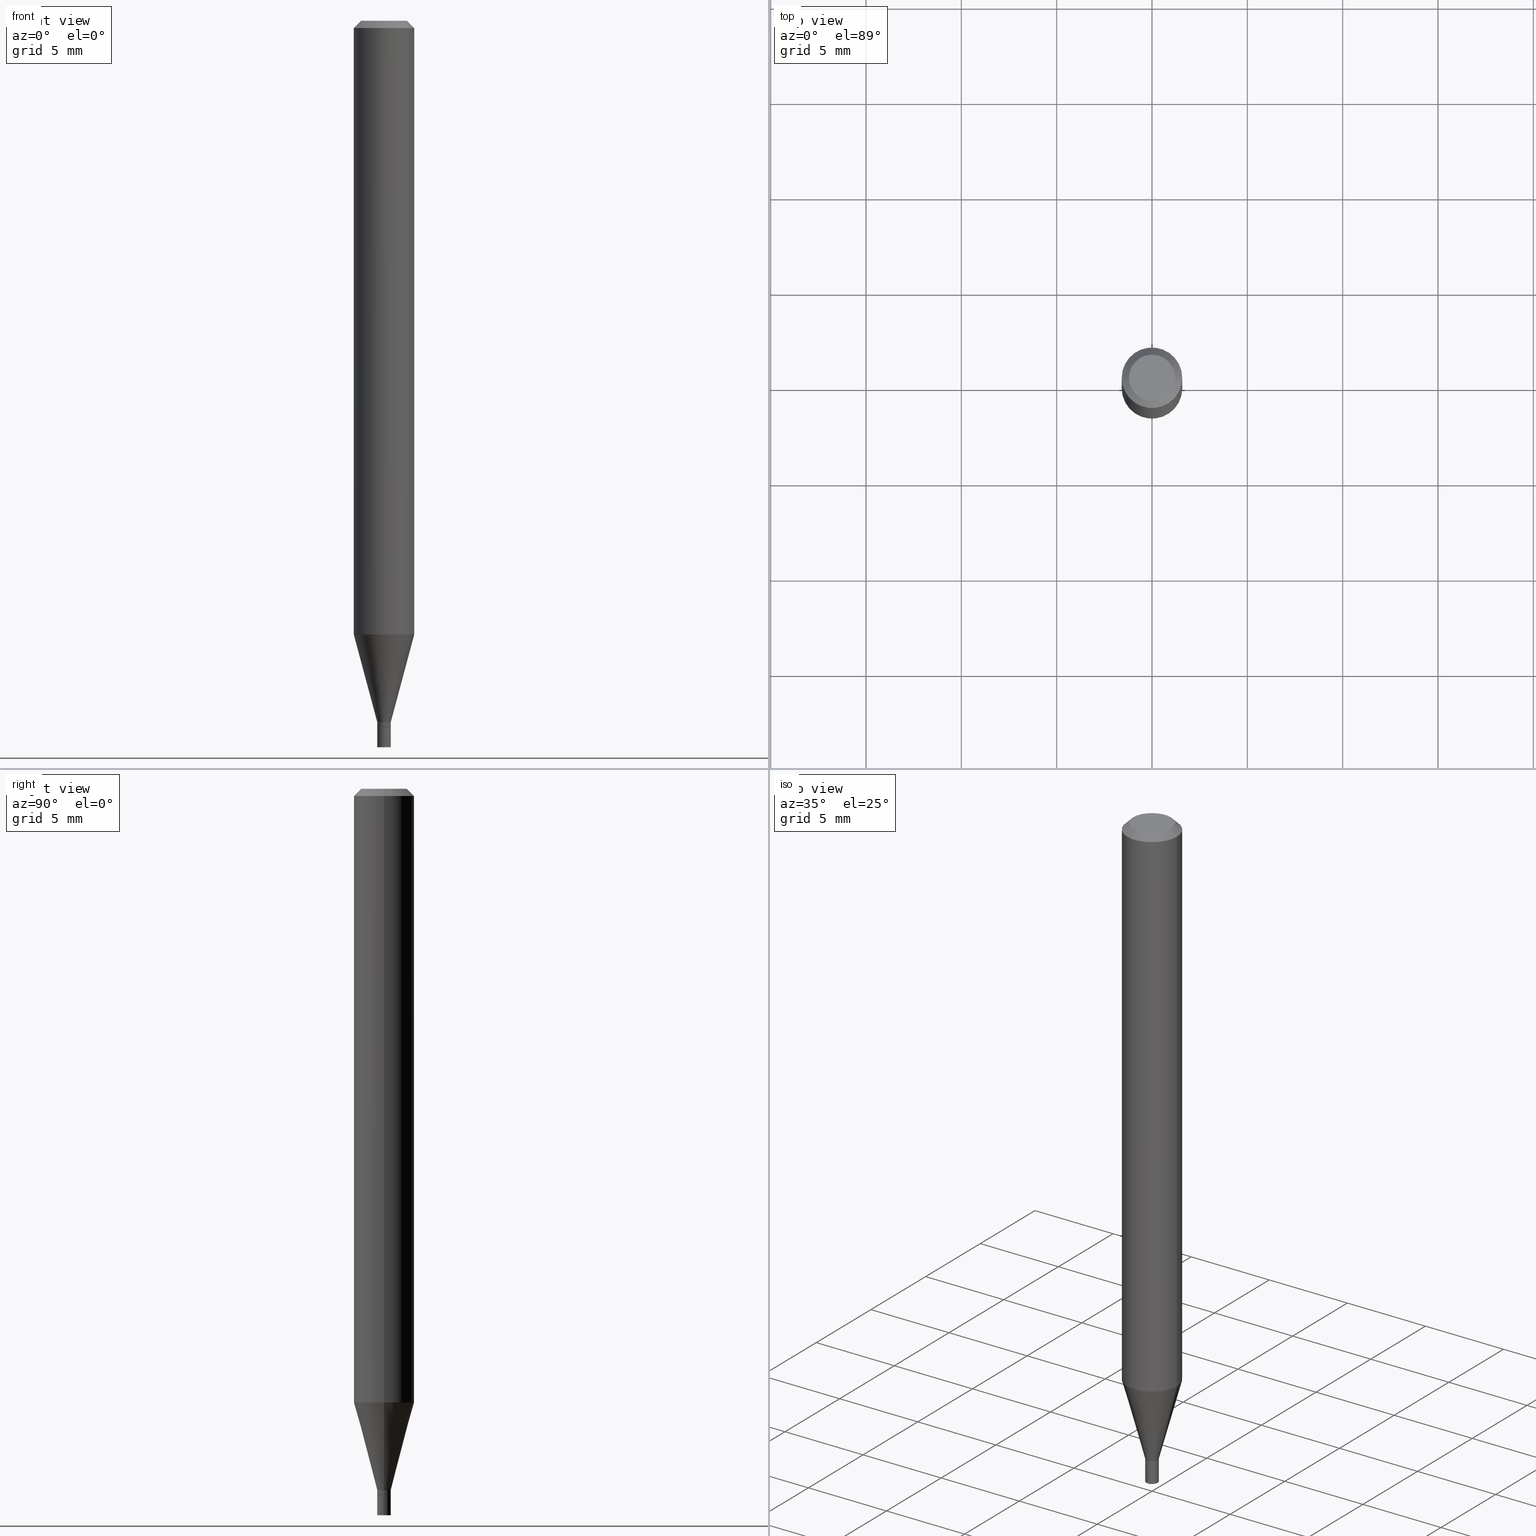
[diagram: canonical four-view strip — front | top / right | iso, engineering-drawing reading convention]
A machine part, canonical four-view strip (front | top / right | iso — engineering-drawing reading convention). The complete STEP part file that produces these views, byte-faithful:
ISO-10303-21;
HEADER;
FILE_DESCRIPTION (( 'STEP AP203' ),
    '1' );
FILE_NAME ('02224.STEP',
    '2024-03-18T19:55:11',
    ( '' ),
    ( '' ),
    'SwSTEP 2.0',
    'SolidWorks 2023',
    '' );
FILE_SCHEMA (( 'CONFIG_CONTROL_DESIGN' ));
ENDSEC;

DATA;
#1 = AXIS2_PLACEMENT_3D ( 'NONE', #270, #83, #49 ) ;
#2 = COORDINATED_UNIVERSAL_TIME_OFFSET ( 5, 0, .BEHIND. ) ;
#3 = ADVANCED_FACE ( 'NONE', ( #456 ), #176, .F. ) ;
#4 = CARTESIAN_POINT ( 'NONE',  ( 0.01350000000000000158, -5.184849788182071492E-15, -1.458000000000000185 ) ) ;
#5 = DATE_AND_TIME ( #224, #283 ) ;
#6 = CARTESIAN_POINT ( 'NONE',  ( 3.565493519417929750E-29, -5.090579792033306355E-15, -1.458000000000000185 ) ) ;
#7 = CARTESIAN_POINT ( 'NONE',  ( -0.01400000000000000203, 9.947598300641404042E-17, -6.886509126356868606E-31 ) ) ;
#8 = AXIS2_PLACEMENT_3D ( 'NONE', #231, #150, #295 ) ;
#9 = EDGE_LOOP ( 'NONE', ( #407, #291, #288, #415 ) ) ;
#10 = DIRECTION ( 'NONE',  ( 1.000000000000000000, -6.982962677686266711E-15, 4.876176775795935793E-29 ) ) ;
#11 = EDGE_CURVE ( 'NONE', #307, #87, #177, .T. ) ;
#12 = ADVANCED_BREP_SHAPE_REPRESENTATION ( '02224', ( #284, #125, #221 ), #164 ) ;
#13 = ORIENTED_EDGE ( 'NONE', *, *, #349, .T. ) ;
#14 = EDGE_CURVE ( 'NONE', #235, #348, #94, .T. ) ;
#15 = EDGE_LOOP ( 'NONE', ( #64, #129, #402, #121 ) ) ;
#16 = VERTEX_POINT ( 'NONE', #208 ) ;
#17 = ORGANIZATION ( 'UNSPECIFIED', 'UNSPECIFIED', '' ) ;
#18 = ADVANCED_FACE ( 'NONE', ( #218 ), #310, .F. ) ;
#19 = CARTESIAN_POINT ( 'NONE',  ( -0.06250000000000000000, 3.840629472727444916E-16, -0.01499999999999999944 ) ) ;
#20 = CARTESIAN_POINT ( 'NONE',  ( 0.06249999999999999306, -4.860126437113567612E-15, -1.266995535832909692 ) ) ;
#21 = FACE_OUTER_BOUND ( 'NONE', #196, .T. ) ;
#22 = DIRECTION ( 'NONE',  ( 1.000000000000000000, -6.982962677686262766E-15, 0.000000000000000000 ) ) ;
#23 = EDGE_CURVE ( 'NONE', #336, #422, #333, .T. ) ;
#24 = CYLINDRICAL_SURFACE ( 'NONE', #277, 0.01399999999999992223 ) ;
#25 = ORIENTED_EDGE ( 'NONE', *, *, #327, .T. ) ;
#26 = AXIS2_PLACEMENT_3D ( 'NONE', #346, #280, #22 ) ;
#27 = DIRECTION ( 'NONE',  ( 2.445468806185136597E-29, -3.491481338843145583E-15, -1.000000000000000000 ) ) ;
#28 = DIRECTION ( 'NONE',  ( 2.438088387897960049E-29, -3.491481338843145188E-15, -1.000000000000000000 ) ) ;
#29 = CONICAL_SURFACE ( 'NONE', #206, 0.01399999999999992049, 0.2617993877991498519 ) ;
#30 = ADVANCED_FACE ( 'NONE', ( #167 ), #448, .T. ) ;
#31 = DIRECTION ( 'NONE',  ( -0.7071067811865642261, 7.493145998870414114E-15, 0.7071067811865309194 ) ) ;
#32 = EDGE_LOOP ( 'NONE', ( #173, #61, #444, #265 ) ) ;
#33 = PLANE ( 'NONE',  #95 ) ;
#34 = PERSON_AND_ORGANIZATION_ROLE ( 'design_supplier' ) ;
#35 = APPROVAL_STATUS ( 'not_yet_approved' ) ;
#36 = EDGE_CURVE ( 'NONE', #87, #307, #390, .T. ) ;
#37 = AXIS2_PLACEMENT_3D ( 'NONE', #401, #364, #217 ) ;
#38 = DIRECTION ( 'NONE',  ( -2.445468806185136597E-29, 3.491481338843145583E-15, 1.000000000000000000 ) ) ;
#39 = CALENDAR_DATE ( 2024, 18, 3 ) ;
#40 = CARTESIAN_POINT ( 'NONE',  ( 0.01399999999999992049, -5.153426456132482850E-15, -1.448000000000000176 ) ) ;
#41 = LINE ( 'NONE', #7, #276 ) ;
#42 = PERSON_AND_ORGANIZATION ( #292, #17 ) ;
#43 = ORIENTED_EDGE ( 'NONE', *, *, #199, .F. ) ;
#44 = CC_DESIGN_PERSON_AND_ORGANIZATION_ASSIGNMENT ( #219, #466, ( #457 ) ) ;
#45 = LENGTH_MEASURE_WITH_UNIT ( LENGTH_MEASURE( 0.02539999999999999897 ), #300 );
#46 = EDGE_LOOP ( 'NONE', ( #79, #105, #269, #376 ) ) ;
#47 = VERTEX_POINT ( 'NONE', #323 ) ;
#48 = ORIENTED_EDGE ( 'NONE', *, *, #85, .F. ) ;
#49 = DIRECTION ( 'NONE',  ( 1.000000000000000000, -6.982962677686267499E-15, 4.852736867747366768E-29 ) ) ;
#50 = EDGE_CURVE ( 'NONE', #371, #422, #97, .T. ) ;
#51 = ORIENTED_EDGE ( 'NONE', *, *, #91, .T. ) ;
#52 = AXIS2_PLACEMENT_3D ( 'NONE', #420, #102, #418 ) ;
#53 = CC_DESIGN_SECURITY_CLASSIFICATION ( #457, ( #74 ) ) ;
#54 = FACE_OUTER_BOUND ( 'NONE', #114, .T. ) ;
#55 = AXIS2_PLACEMENT_3D ( 'NONE', #143, #357, #316 ) ;
#56 = LINE ( 'NONE', #212, #446 ) ;
#57 = DIRECTION ( 'NONE',  ( -2.445468806185136597E-29, 3.491481338843145583E-15, 1.000000000000000000 ) ) ;
#58 = CARTESIAN_POINT ( 'NONE',  ( -0.01350000000000000158, -4.994656522705693139E-15, -1.458000000000000185 ) ) ;
#59 = ORIENTED_EDGE ( 'NONE', *, *, #11, .F. ) ;
#60 = DIRECTION ( 'NONE',  ( -2.445468806185136877E-29, 3.491481338843145188E-15, 1.000000000000000000 ) ) ;
#61 = ORIENTED_EDGE ( 'NONE', *, *, #36, .T. ) ;
#62 = CONICAL_SURFACE ( 'NONE', #195, 0.06250000000000000000, 0.7853981633974579379 ) ;
#63 = DIRECTION ( 'NONE',  ( 2.438088387897960049E-29, -3.491481338843145188E-15, -1.000000000000000000 ) ) ;
#64 = ORIENTED_EDGE ( 'NONE', *, *, #441, .F. ) ;
#65 = VECTOR ( 'NONE', #215, 39.37007874015748143 ) ;
#66 = CARTESIAN_POINT ( 'NONE',  ( 0.01400000000000000203, -5.188341269520914499E-15, -1.458000000000000185 ) ) ;
#67 = DIRECTION ( 'NONE',  ( 1.000000000000000000, -6.982962677686301420E-15, 0.000000000000000000 ) ) ;
#68 = SECURITY_CLASSIFICATION_LEVEL ( 'unclassified' ) ;
#69 = ADVANCED_FACE ( 'NONE', ( #387 ), #180, .T. ) ;
#70 =( NAMED_UNIT ( * ) PLANE_ANGLE_UNIT ( ) SI_UNIT ( $, .RADIAN. ) );
#71 = CALENDAR_DATE ( 2024, 18, 3 ) ;
#72 = DIRECTION ( 'NONE',  ( 1.000000000000000000, -6.982962677686262766E-15, 0.000000000000000000 ) ) ;
#73 = APPROVAL_STATUS ( 'not_yet_approved' ) ;
#74 = PRODUCT_DEFINITION_FORMATION_WITH_SPECIFIED_SOURCE ( 'ANY', '', #411, .NOT_KNOWN. ) ;
#75 = LINE ( 'NONE', #40, #424 ) ;
#76 = CALENDAR_DATE ( 2024, 18, 3 ) ;
#77 = ORIENTED_EDGE ( 'NONE', *, *, #199, .T. ) ;
#78 = CARTESIAN_POINT ( 'NONE',  ( 0.01350000000000000158, -5.184849788182071492E-15, -1.458000000000000185 ) ) ;
#79 = ORIENTED_EDGE ( 'NONE', *, *, #50, .F. ) ;
#80 = VERTEX_POINT ( 'NONE', #118 ) ;
#81 = AXIS2_PLACEMENT_3D ( 'NONE', #246, #383, #134 ) ;
#82 = DATE_AND_TIME ( #309, #416 ) ;
#83 = DIRECTION ( 'NONE',  ( -2.445468806185136597E-29, 3.491481338843145583E-15, 1.000000000000000000 ) ) ;
#84 = ORIENTED_EDGE ( 'NONE', *, *, #194, .T. ) ;
#85 = EDGE_CURVE ( 'NONE', #442, #348, #428, .T. ) ;
#86 = DIRECTION ( 'NONE',  ( -2.445468806185136597E-29, 3.491481338843145583E-15, 1.000000000000000000 ) ) ;
#87 = VERTEX_POINT ( 'NONE', #437 ) ;
#88 = CARTESIAN_POINT ( 'NONE',  ( 0.000000000000000000, 0.000000000000000000, 0.000000000000000000 ) ) ;
#89 = AXIS2_PLACEMENT_3D ( 'NONE', #256, #28, #459 ) ;
#90 = LOCAL_TIME ( 15, 55, 11.00000000000000000, #2 ) ;
#91 = EDGE_CURVE ( 'NONE', #198, #442, #163, .T. ) ;
#92 = DIRECTION ( 'NONE',  ( -2.445468806185136597E-29, 3.491481338843145583E-15, 1.000000000000000000 ) ) ;
#93 = ORIENTED_EDGE ( 'NONE', *, *, #205, .F. ) ;
#94 = CIRCLE ( 'NONE', #361, 0.01399999999999992396 ) ;
#95 = AXIS2_PLACEMENT_3D ( 'NONE', #112, #294, #184 ) ;
#96 = CARTESIAN_POINT ( 'NONE',  ( 3.564270785014837509E-29, -5.088834051363884851E-15, -1.457500000000000240 ) ) ;
#97 = LINE ( 'NONE', #247, #148 ) ;
#98 = CARTESIAN_POINT ( 'NONE',  ( -0.01399999999999992049, -4.467895527773287748E-15, -1.448000000000000176 ) ) ;
#99 = CARTESIAN_POINT ( 'NONE',  ( 0.000000000000000000, 0.000000000000000000, 0.000000000000000000 ) ) ;
#100 = ADVANCED_FACE ( 'NONE', ( #426 ), #62, .T. ) ;
#101 = DIRECTION ( 'NONE',  ( 1.000000000000000000, -6.982962677686266711E-15, 0.000000000000000000 ) ) ;
#102 = DIRECTION ( 'NONE',  ( -2.445468806185136597E-29, 3.491481338843145583E-15, 1.000000000000000000 ) ) ;
#103 = APPROVAL_ROLE ( '' ) ;
#104 = DIRECTION ( 'NONE',  ( 1.000000000000000000, -6.982962677686233578E-15, 0.000000000000000000 ) ) ;
#105 = ORIENTED_EDGE ( 'NONE', *, *, #341, .F. ) ;
#106 = VECTOR ( 'NONE', #31, 39.37007874015748143 ) ;
#107 = CC_DESIGN_DATE_AND_TIME_ASSIGNMENT ( #394, #189, ( #337 ) ) ;
#108 = FACE_OUTER_BOUND ( 'NONE', #251, .T. ) ;
#109 = CARTESIAN_POINT ( 'NONE',  ( -0.04749999999999999362, 3.578768372314205575E-16, -2.863788329398987133E-16 ) ) ;
#110 = PERSON_AND_ORGANIZATION_ROLE ( 'design_owner' ) ;
#111 = UNCERTAINTY_MEASURE_WITH_UNIT (LENGTH_MEASURE( 1.000000000000000082E-05 ), #186, 'distance_accuracy_value', 'NONE');
#112 = CARTESIAN_POINT ( 'NONE',  ( 3.576687321579069994E-29, -5.368277968210015545E-15, -1.500000000000000222 ) ) ;
#113 = AXIS2_PLACEMENT_3D ( 'NONE', #140, #417, #302 ) ;
#114 = EDGE_LOOP ( 'NONE', ( #77, #305, #332, #462 ) ) ;
#115 = EDGE_CURVE ( 'NONE', #16, #47, #41, .T. ) ;
#116 = ORIENTED_EDGE ( 'NONE', *, *, #174, .F. ) ;
#117 = DIRECTION ( 'NONE',  ( -2.445468806185136597E-29, 3.491481338843145583E-15, 1.000000000000000000 ) ) ;
#118 = CARTESIAN_POINT ( 'NONE',  ( 0.01399999999999992049, -5.153426456132482850E-15, -1.448000000000000176 ) ) ;
#119 = VERTEX_POINT ( 'NONE', #272 ) ;
#120 = CLOSED_SHELL ( 'NONE', ( #123, #209, #100, #372, #429, #225, #30, #161, #252, #18, #312, #243 ) ) ;
#121 = ORIENTED_EDGE ( 'NONE', *, *, #289, .F. ) ;
#122 = CONICAL_SURFACE ( 'NONE', #434, 0.01350000000000000158, 0.7853981633974718157 ) ;
#123 = ADVANCED_FACE ( 'NONE', ( #54 ), #406, .T. ) ;
#124 = DIRECTION ( 'NONE',  ( -2.445468806185136877E-29, 3.491481338843145188E-15, 1.000000000000000000 ) ) ;
#125 = MANIFOLD_SOLID_BREP ( 'Body-Move/Copy2[2]', #120 ) ;
#126 = ORIENTED_EDGE ( 'NONE', *, *, #275, .T. ) ;
#127 = SHAPE_DEFINITION_REPRESENTATION ( #168, #12 ) ;
#128 = DIRECTION ( 'NONE',  ( -2.445468806185136597E-29, 3.491481338843145583E-15, 1.000000000000000000 ) ) ;
#129 = ORIENTED_EDGE ( 'NONE', *, *, #14, .T. ) ;
#130 = DIRECTION ( 'NONE',  ( -0.7071067811865542341, 2.468850131082328058E-15, -0.7071067811865405783 ) ) ;
#131 = EDGE_CURVE ( 'NONE', #303, #47, #253, .T. ) ;
#132 = CLOSED_SHELL ( 'NONE', ( #69, #412, #375, #3 ) ) ;
#133 = AXIS2_PLACEMENT_3D ( 'NONE', #96, #343, #279 ) ;
#134 = DIRECTION ( 'NONE',  ( 1.000000000000000000, -6.982962677686296687E-15, 0.000000000000000000 ) ) ;
#135 = CARTESIAN_POINT ( 'NONE',  ( 3.565493519417929750E-29, -5.090579792033306355E-15, -1.458000000000000185 ) ) ;
#136 = DIRECTION ( 'NONE',  ( 1.000000000000000000, -6.982962677686266711E-15, 4.876176775795935793E-29 ) ) ;
#137 = EDGE_CURVE ( 'NONE', #371, #389, #381, .T. ) ;
#138 = AXIS2_PLACEMENT_3D ( 'NONE', #267, #430, #10 ) ;
#139 = CC_DESIGN_APPROVAL ( #278, ( #457 ) ) ;
#140 = CARTESIAN_POINT ( 'NONE',  ( 7.003305027062207074E-45, -9.998863510493265527E-31, -2.863788329398962481E-16 ) ) ;
#141 = CARTESIAN_POINT ( 'NONE',  ( 3.564270785014837509E-29, -5.088834051363884851E-15, -1.457500000000000240 ) ) ;
#142 = LINE ( 'NONE', #145, #391 ) ;
#143 = CARTESIAN_POINT ( 'NONE',  ( 3.565493519417929750E-29, -5.090579792033306355E-15, -1.458000000000000185 ) ) ;
#144 = DATE_TIME_ROLE ( 'classification_date' ) ;
#145 = CARTESIAN_POINT ( 'NONE',  ( -0.06250000000000000000, 4.440892098500626162E-16, -3.074334431409316114E-30 ) ) ;
#146 = EDGE_LOOP ( 'NONE', ( #273, #25, #43, #48 ) ) ;
#147 = EDGE_CURVE ( 'NONE', #119, #16, #185, .T. ) ;
#148 = VECTOR ( 'NONE', #384, 39.37007874015748854 ) ;
#149 = CARTESIAN_POINT ( 'NONE',  ( 3.541038831356078205E-29, -5.055664978644875495E-15, -1.448000000000000176 ) ) ;
#150 = DIRECTION ( 'NONE',  ( -2.445468806185136597E-29, 3.491481338843145583E-15, 1.000000000000000000 ) ) ;
#151 = CONICAL_SURFACE ( 'NONE', #81, 0.01350000000000000158, 0.7853981633974718157 ) ;
#152 = CARTESIAN_POINT ( 'NONE',  ( 3.541038831356078205E-29, -5.055664978644875495E-15, -1.448000000000000176 ) ) ;
#153 = APPLICATION_PROTOCOL_DEFINITION ( 'international standard', 'config_control_design', 1994, #342 ) ;
#154 = APPLICATION_PROTOCOL_DEFINITION ( 'international standard', 'config_control_design', 1994, #258 ) ;
#155 = EDGE_CURVE ( 'NONE', #389, #336, #204, .T. ) ;
#156 = DIRECTION ( 'NONE',  ( 1.000000000000000000, 0.000000000000000000, 0.000000000000000000 ) ) ;
#157 = AXIS2_PLACEMENT_3D ( 'NONE', #388, #315, #101 ) ;
#158 = VERTEX_POINT ( 'NONE', #98 ) ;
#159 = CYLINDRICAL_SURFACE ( 'NONE', #37, 0.01400000000000000203 ) ;
#160 = ORIENTED_EDGE ( 'NONE', *, *, #131, .F. ) ;
#161 = ADVANCED_FACE ( 'NONE', ( #244 ), #187, .T. ) ;
#162 = ORIENTED_EDGE ( 'NONE', *, *, #36, .F. ) ;
#163 = CIRCLE ( 'NONE', #8, 0.01350000000000000158 ) ;
#164 =( GEOMETRIC_REPRESENTATION_CONTEXT ( 3 ) GLOBAL_UNCERTAINTY_ASSIGNED_CONTEXT ( ( #111 ) ) GLOBAL_UNIT_ASSIGNED_CONTEXT ( ( #186, #70, #436 ) ) REPRESENTATION_CONTEXT ( 'NONE', 'WORKASPACE' ) );
#165 = ORIENTED_EDGE ( 'NONE', *, *, #137, .F. ) ;
#166 = AXIS2_PLACEMENT_3D ( 'NONE', #409, #92, #461 ) ;
#167 = FACE_OUTER_BOUND ( 'NONE', #32, .T. ) ;
#168 = PRODUCT_DEFINITION_SHAPE ( 'NONE', 'NONE',  #337 ) ;
#169 = AXIS2_PLACEMENT_3D ( 'NONE', #88, #86, #304 ) ;
#170 = CIRCLE ( 'NONE', #157, 0.06250000000000000000 ) ;
#171 = DIRECTION ( 'NONE',  ( -2.445468806185136597E-29, 3.491481338843145583E-15, 1.000000000000000000 ) ) ;
#172 = DIRECTION ( 'NONE',  ( 1.000000000000000000, -6.982962677686262766E-15, 0.000000000000000000 ) ) ;
#173 = ORIENTED_EDGE ( 'NONE', *, *, #194, .F. ) ;
#174 = EDGE_CURVE ( 'NONE', #119, #303, #314, .T. ) ;
#175 = CARTESIAN_POINT ( 'NONE',  ( 0.06250000000000000000, -4.364351673553916694E-16, 3.047610484872459871E-30 ) ) ;
#176 = PLANE ( 'NONE',  #89 ) ;
#177 = CIRCLE ( 'NONE', #432, 0.06250000000000000000 ) ;
#178 = VECTOR ( 'NONE', #359, 39.37007874015748143 ) ;
#179 = FACE_OUTER_BOUND ( 'NONE', #15, .T. ) ;
#180 = CYLINDRICAL_SURFACE ( 'NONE', #449, 0.01400000000000000203 ) ;
#181 = CARTESIAN_POINT ( 'NONE',  ( 3.541038831356078205E-29, -5.055664978644875495E-15, -1.448000000000000176 ) ) ;
#182 = DIRECTION ( 'NONE',  ( -2.445468806185136597E-29, 3.491481338843145583E-15, 1.000000000000000000 ) ) ;
#183 = APPROVAL_ROLE ( '' ) ;
#184 = DIRECTION ( 'NONE',  ( 1.000000000000000000, -6.982962677686265922E-15, 4.876176775795935793E-29 ) ) ;
#185 = CIRCLE ( 'NONE', #445, 0.01400000000000000203 ) ;
#186 =( CONVERSION_BASED_UNIT ( 'INCH', #45 ) LENGTH_UNIT ( ) NAMED_UNIT ( #311 ) );
#187 = CONICAL_SURFACE ( 'NONE', #408, 0.06250000000000000000, 0.7853981633974579379 ) ;
#188 = LINE ( 'NONE', #191, #178 ) ;
#189 = DATE_TIME_ROLE ( 'creation_date' ) ;
#190 = PRODUCT_RELATED_PRODUCT_CATEGORY ( 'detail', '', ( #411 ) ) ;
#191 = CARTESIAN_POINT ( 'NONE',  ( -0.01399999999999992223, 9.947598300641347342E-17, -6.886509126356829194E-31 ) ) ;
#192 = PERSON_AND_ORGANIZATION ( #292, #17 ) ;
#193 = EDGE_LOOP ( 'NONE', ( #298, #84, #232, #351 ) ) ;
#194 = EDGE_CURVE ( 'NONE', #87, #336, #142, .T. ) ;
#195 = AXIS2_PLACEMENT_3D ( 'NONE', #365, #259, #223 ) ;
#196 = EDGE_LOOP ( 'NONE', ( #354, #321 ) ) ;
#197 = APPROVAL ( #431, 'UNSPECIFIED' ) ;
#198 = VERTEX_POINT ( 'NONE', #255 ) ;
#199 = EDGE_CURVE ( 'NONE', #348, #235, #242, .T. ) ;
#200 = ORIENTED_EDGE ( 'NONE', *, *, #155, .F. ) ;
#201 = CARTESIAN_POINT ( 'NONE',  ( 3.668203209277704895E-29, -5.237222008264718177E-15, -1.500000000000000222 ) ) ;
#202 = CC_DESIGN_APPROVAL ( #197, ( #74 ) ) ;
#203 = ORIENTED_EDGE ( 'NONE', *, *, #85, .T. ) ;
#204 = LINE ( 'NONE', #19, #413 ) ;
#205 = EDGE_CURVE ( 'NONE', #16, #119, #334, .T. ) ;
#206 = AXIS2_PLACEMENT_3D ( 'NONE', #152, #38, #427 ) ;
#207 = DIRECTION ( 'NONE',  ( -2.445468806185136877E-29, 3.491481338843145188E-15, 1.000000000000000000 ) ) ;
#208 = CARTESIAN_POINT ( 'NONE',  ( -0.01400000000000000203, -5.064424917142598546E-15, -1.500000000000000222 ) ) ;
#209 = ADVANCED_FACE ( 'NONE', ( #419 ), #122, .T. ) ;
#210 = CARTESIAN_POINT ( 'NONE',  ( -0.01399999999999992396, -4.989358068357471526E-15, -1.457500000000000240 ) ) ;
#211 = ORIENTED_EDGE ( 'NONE', *, *, #14, .F. ) ;
#212 = CARTESIAN_POINT ( 'NONE',  ( -0.01399999999999992049, -4.956188995638462169E-15, -1.448000000000000176 ) ) ;
#213 = EDGE_LOOP ( 'NONE', ( #286, #237, #13, #162 ) ) ;
#214 = APPROVAL_PERSON_ORGANIZATION ( #264, #233, #183 ) ;
#215 = DIRECTION ( 'NONE',  ( -2.445468806185136877E-29, 3.491481338843145188E-15, 1.000000000000000000 ) ) ;
#216 = ORIENTED_EDGE ( 'NONE', *, *, #147, .F. ) ;
#217 = DIRECTION ( 'NONE',  ( 1.000000000000000000, -6.982962677686266711E-15, 4.876176775795935232E-29 ) ) ;
#218 = FACE_OUTER_BOUND ( 'NONE', #369, .T. ) ;
#219 = PERSON_AND_ORGANIZATION ( #292, #17 ) ;
#220 = COORDINATED_UNIVERSAL_TIME_OFFSET ( 5, 0, .BEHIND. ) ;
#221 = AXIS2_PLACEMENT_3D ( 'NONE', #227, #367, #156 ) ;
#222 = CYLINDRICAL_SURFACE ( 'NONE', #138, 0.06250000000000000000 ) ;
#223 = DIRECTION ( 'NONE',  ( -1.000000000000000000, 6.982962677686266711E-15, 0.000000000000000000 ) ) ;
#224 = CALENDAR_DATE ( 2024, 18, 3 ) ;
#225 = ADVANCED_FACE ( 'NONE', ( #386 ), #382, .T. ) ;
#226 = DESIGN_CONTEXT ( 'detailed design', #258, 'design' ) ;
#227 = CARTESIAN_POINT ( 'NONE',  ( 0.000000000000000000, 0.000000000000000000, 0.000000000000000000 ) ) ;
#228 = CARTESIAN_POINT ( 'NONE',  ( 0.000000000000000000, 0.000000000000000000, 0.000000000000000000 ) ) ;
#229 = DATE_AND_TIME ( #76, #397 ) ;
#230 = EDGE_LOOP ( 'NONE', ( #216, #93 ) ) ;
#231 = CARTESIAN_POINT ( 'NONE',  ( 3.565493519417929750E-29, -5.090579792033306355E-15, -1.458000000000000185 ) ) ;
#232 = ORIENTED_EDGE ( 'NONE', *, *, #275, .F. ) ;
#233 = APPROVAL ( #73, 'UNSPECIFIED' ) ;
#234 = DIRECTION ( 'NONE',  ( -2.445468806185136597E-29, 3.491481338843145583E-15, 1.000000000000000000 ) ) ;
#235 = VERTEX_POINT ( 'NONE', #210 ) ;
#236 = APPROVAL_DATE_TIME ( #82, #278 ) ;
#237 = ORIENTED_EDGE ( 'NONE', *, *, #289, .T. ) ;
#238 = CARTESIAN_POINT ( 'NONE',  ( 3.565493519417929750E-29, -5.090579792033306355E-15, -1.458000000000000185 ) ) ;
#239 = ORIENTED_EDGE ( 'NONE', *, *, #50, .T. ) ;
#240 = DIRECTION ( 'NONE',  ( 1.000000000000000000, -6.982962677686262766E-15, 0.000000000000000000 ) ) ;
#241 = AXIS2_PLACEMENT_3D ( 'NONE', #99, #57, #136 ) ;
#242 = CIRCLE ( 'NONE', #133, 0.01399999999999992396 ) ;
#243 = ADVANCED_FACE ( 'NONE', ( #179 ), #24, .T. ) ;
#244 = FACE_OUTER_BOUND ( 'NONE', #46, .T. ) ;
#245 = EDGE_LOOP ( 'NONE', ( #374, #447, #160, #116 ) ) ;
#246 = CARTESIAN_POINT ( 'NONE',  ( 3.565493519417929750E-29, -5.090579792033306355E-15, -1.458000000000000185 ) ) ;
#247 = CARTESIAN_POINT ( 'NONE',  ( 0.06250000000000000000, -4.811533449433679005E-16, -0.01499999999999999944 ) ) ;
#248 = CARTESIAN_POINT ( 'NONE',  ( 3.668203209277705088E-31, -5.237222008264718399E-17, -0.01499999999999999944 ) ) ;
#249 = ORIENTED_EDGE ( 'NONE', *, *, #91, .F. ) ;
#250 = DIRECTION ( 'NONE',  ( -2.445468806185136597E-29, 3.491481338843145583E-15, 1.000000000000000000 ) ) ;
#251 = EDGE_LOOP ( 'NONE', ( #433, #400, #59, #340 ) ) ;
#252 = ADVANCED_FACE ( 'NONE', ( #21 ), #379, .F. ) ;
#253 = CIRCLE ( 'NONE', #404, 0.01400000000000000203 ) ;
#254 = CIRCLE ( 'NONE', #113, 0.04749999999999999362 ) ;
#255 = CARTESIAN_POINT ( 'NONE',  ( -0.01350000000000000158, -4.992007295531582727E-15, -1.458000000000000185 ) ) ;
#256 = CARTESIAN_POINT ( 'NONE',  ( 9.776147748764338405E-17, 0.01399999999999491061, -1.458000000000000185 ) ) ;
#257 = PERSON_AND_ORGANIZATION_ROLE ( 'creator' ) ;
#258 = APPLICATION_CONTEXT ( 'configuration controlled 3d designs of mechanical parts and assemblies' ) ;
#259 = DIRECTION ( 'NONE',  ( 2.445468806185136597E-29, -3.491481338843145583E-15, -1.000000000000000000 ) ) ;
#260 = CC_DESIGN_PERSON_AND_ORGANIZATION_ASSIGNMENT ( #396, #366, ( #337 ) ) ;
#261 = CARTESIAN_POINT ( 'NONE',  ( 0.06250000000000000000, -4.888073874380388472E-16, -0.01499999999999999944 ) ) ;
#262 = COORDINATED_UNIVERSAL_TIME_OFFSET ( 5, 0, .BEHIND. ) ;
#263 = LOCAL_TIME ( 15, 55, 11.00000000000000000, #220 ) ;
#264 = PERSON_AND_ORGANIZATION ( #292, #17 ) ;
#265 = ORIENTED_EDGE ( 'NONE', *, *, #23, .F. ) ;
#266 = FACE_OUTER_BOUND ( 'NONE', #9, .T. ) ;
#267 = CARTESIAN_POINT ( 'NONE',  ( 0.000000000000000000, 0.000000000000000000, 0.000000000000000000 ) ) ;
#268 = APPROVAL_ROLE ( '' ) ;
#269 = ORIENTED_EDGE ( 'NONE', *, *, #155, .T. ) ;
#270 = CARTESIAN_POINT ( 'NONE',  ( 7.003305027062207074E-45, -9.998863510493265527E-31, -2.863788329398962481E-16 ) ) ;
#271 = EDGE_LOOP ( 'NONE', ( #338, #282 ) ) ;
#272 = CARTESIAN_POINT ( 'NONE',  ( 0.01400000000000000203, -5.334983485752326321E-15, -1.500000000000000222 ) ) ;
#273 = ORIENTED_EDGE ( 'NONE', *, *, #308, .T. ) ;
#274 = CC_DESIGN_PERSON_AND_ORGANIZATION_ASSIGNMENT ( #42, #257, ( #74 ) ) ;
#275 = EDGE_CURVE ( 'NONE', #422, #336, #170, .T. ) ;
#276 = VECTOR ( 'NONE', #124, 39.37007874015748143 ) ;
#277 = AXIS2_PLACEMENT_3D ( 'NONE', #320, #285, #287 ) ;
#278 = APPROVAL ( #35, 'UNSPECIFIED' ) ;
#279 = DIRECTION ( 'NONE',  ( 1.000000000000000000, -6.982962677686301420E-15, 0.000000000000000000 ) ) ;
#280 = DIRECTION ( 'NONE',  ( -2.445468806185136597E-29, 3.491481338843145583E-15, 1.000000000000000000 ) ) ;
#281 = DIRECTION ( 'NONE',  ( -2.445468806185136597E-29, 3.491481338843145583E-15, 1.000000000000000000 ) ) ;
#282 = ORIENTED_EDGE ( 'NONE', *, *, #463, .T. ) ;
#283 = LOCAL_TIME ( 15, 55, 11.00000000000000000, #262 ) ;
#284 = MANIFOLD_SOLID_BREP ( 'Body-Move/Copy2[1]', #132 ) ;
#285 = DIRECTION ( 'NONE',  ( -2.445468806185136597E-29, 3.491481338843145583E-15, 1.000000000000000000 ) ) ;
#286 = ORIENTED_EDGE ( 'NONE', *, *, #296, .F. ) ;
#287 = DIRECTION ( 'NONE',  ( 1.000000000000000000, -6.982962677686265922E-15, 4.876176775795935793E-29 ) ) ;
#288 = ORIENTED_EDGE ( 'NONE', *, *, #174, .T. ) ;
#289 = EDGE_CURVE ( 'NONE', #158, #80, #293, .T. ) ;
#290 = CARTESIAN_POINT ( 'NONE',  ( 3.316907271900976096E-16, 0.04749999999999999362, -3.090347800649974958E-16 ) ) ;
#291 = ORIENTED_EDGE ( 'NONE', *, *, #205, .T. ) ;
#292 = PERSON ( 'UNSPECIFIED', 'UNSPECIFIED', 'UNSPECIFIED', ('UNSPECIFIED'), ('UNSPECIFIED'), ('UNSPECIFIED') ) ;
#293 = CIRCLE ( 'NONE', #299, 0.01399999999999992049 ) ;
#294 = DIRECTION ( 'NONE',  ( -2.438088387897960049E-29, 3.491481338843145188E-15, 1.000000000000000000 ) ) ;
#295 = DIRECTION ( 'NONE',  ( 1.000000000000000000, -6.982962677686296687E-15, 0.000000000000000000 ) ) ;
#296 = EDGE_CURVE ( 'NONE', #158, #87, #56, .T. ) ;
#297 = FACE_OUTER_BOUND ( 'NONE', #230, .T. ) ;
#298 = ORIENTED_EDGE ( 'NONE', *, *, #11, .T. ) ;
#299 = AXIS2_PLACEMENT_3D ( 'NONE', #181, #281, #104 ) ;
#300 =( LENGTH_UNIT ( ) NAMED_UNIT ( * ) SI_UNIT ( $, .METRE. ) );
#301 = ORIENTED_EDGE ( 'NONE', *, *, #327, .F. ) ;
#302 = DIRECTION ( 'NONE',  ( 1.000000000000000000, -6.982962677686267499E-15, 4.852736867747366768E-29 ) ) ;
#303 = VERTEX_POINT ( 'NONE', #66 ) ;
#304 = DIRECTION ( 'NONE',  ( 1.000000000000000000, -6.982962677686265922E-15, 4.876176775795935793E-29 ) ) ;
#305 = ORIENTED_EDGE ( 'NONE', *, *, #441, .T. ) ;
#306 = AXIS2_PLACEMENT_3D ( 'NONE', #149, #439, #395 ) ;
#307 = VERTEX_POINT ( 'NONE', #20 ) ;
#308 = EDGE_CURVE ( 'NONE', #442, #198, #450, .T. ) ;
#309 = CALENDAR_DATE ( 2024, 18, 3 ) ;
#310 = PLANE ( 'NONE',  #55 ) ;
#311 = DIMENSIONAL_EXPONENTS ( 1.000000000000000000, 0.000000000000000000, 0.000000000000000000, 0.000000000000000000, 0.000000000000000000, 0.000000000000000000, 0.000000000000000000 ) ;
#312 = ADVANCED_FACE ( 'NONE', ( #414 ), #151, .T. ) ;
#313 = VECTOR ( 'NONE', #335, 39.37007874015748143 ) ;
#314 = LINE ( 'NONE', #458, #65 ) ;
#315 = DIRECTION ( 'NONE',  ( -2.445468806185136597E-29, 3.491481338843145583E-15, 1.000000000000000000 ) ) ;
#316 = DIRECTION ( 'NONE',  ( 1.000000000000000000, -6.982962677686265922E-15, 4.876176775795935793E-29 ) ) ;
#317 = DIRECTION ( 'NONE',  ( -0.2588190451025211281, 5.211531920934547886E-15, 0.9659258262890679791 ) ) ;
#318 = EDGE_LOOP ( 'NONE', ( #165, #239, #126, #200 ) ) ;
#319 = AXIS2_PLACEMENT_3D ( 'NONE', #453, #171, #451 ) ;
#320 = CARTESIAN_POINT ( 'NONE',  ( 0.000000000000000000, 0.000000000000000000, 0.000000000000000000 ) ) ;
#321 = ORIENTED_EDGE ( 'NONE', *, *, #137, .T. ) ;
#322 = DIRECTION ( 'NONE',  ( -1.000000000000000000, 6.982962677686266711E-15, 0.000000000000000000 ) ) ;
#323 = CARTESIAN_POINT ( 'NONE',  ( -0.01400000000000000203, -5.064424917142598546E-15, -1.458000000000000185 ) ) ;
#324 = CARTESIAN_POINT ( 'NONE',  ( 0.04749999999999999362, -4.035134999187584047E-16, -2.863788329398937336E-16 ) ) ;
#325 = DIRECTION ( 'NONE',  ( 0.7071067811865642261, -2.468850131082431399E-15, 0.7071067811865309194 ) ) ;
#326 = PERSON_AND_ORGANIZATION ( #292, #17 ) ;
#327 = EDGE_CURVE ( 'NONE', #198, #235, #353, .T. ) ;
#328 = VECTOR ( 'NONE', #325, 39.37007874015748143 ) ;
#329 = EDGE_CURVE ( 'NONE', #307, #422, #347, .T. ) ;
#330 = DIRECTION ( 'NONE',  ( 1.000000000000000000, -6.982962677686266711E-15, 4.876176775795935232E-29 ) ) ;
#331 = DIRECTION ( 'NONE',  ( 0.2588190451025211281, 1.565188264969622954E-15, 0.9659258262890679791 ) ) ;
#332 = ORIENTED_EDGE ( 'NONE', *, *, #385, .F. ) ;
#333 = CIRCLE ( 'NONE', #52, 0.06250000000000000000 ) ;
#334 = CIRCLE ( 'NONE', #373, 0.01400000000000000203 ) ;
#335 = DIRECTION ( 'NONE',  ( -2.445468806185136877E-29, 3.491481338843145188E-15, 1.000000000000000000 ) ) ;
#336 = VERTEX_POINT ( 'NONE', #455 ) ;
#337 = PRODUCT_DEFINITION ( 'UNKNOWN', '', #74, #226 ) ;
#338 = ORIENTED_EDGE ( 'NONE', *, *, #131, .T. ) ;
#339 = APPROVAL_PERSON_ORGANIZATION ( #464, #197, #103 ) ;
#340 = ORIENTED_EDGE ( 'NONE', *, *, #349, .F. ) ;
#341 = EDGE_CURVE ( 'NONE', #389, #371, #254, .T. ) ;
#342 = APPLICATION_CONTEXT ( 'configuration controlled 3d designs of mechanical parts and assemblies' ) ;
#343 = DIRECTION ( 'NONE',  ( -2.445468806185136597E-29, 3.491481338843145583E-15, 1.000000000000000000 ) ) ;
#344 = VECTOR ( 'NONE', #60, 39.37007874015748143 ) ;
#345 = DIRECTION ( 'NONE',  ( -1.000000000000000000, 6.982962677686265922E-15, -4.876176775795935793E-29 ) ) ;
#346 = CARTESIAN_POINT ( 'NONE',  ( 3.098398060455203506E-29, -4.423691269758176732E-15, -1.266995535832909692 ) ) ;
#347 = LINE ( 'NONE', #175, #344 ) ;
#348 = VERTEX_POINT ( 'NONE', #425 ) ;
#349 = EDGE_CURVE ( 'NONE', #80, #307, #75, .T. ) ;
#350 = CARTESIAN_POINT ( 'NONE',  ( 3.668203209277704895E-29, -5.237222008264718177E-15, -1.500000000000000222 ) ) ;
#351 = ORIENTED_EDGE ( 'NONE', *, *, #329, .F. ) ;
#352 = CC_DESIGN_APPROVAL ( #233, ( #337 ) ) ;
#353 = LINE ( 'NONE', #58, #106 ) ;
#354 = ORIENTED_EDGE ( 'NONE', *, *, #341, .T. ) ;
#355 = CC_DESIGN_DATE_AND_TIME_ASSIGNMENT ( #460, #144, ( #457 ) ) ;
#356 = LINE ( 'NONE', #370, #313 ) ;
#357 = DIRECTION ( 'NONE',  ( -2.438088387897960049E-29, 3.491481338843145188E-15, 1.000000000000000000 ) ) ;
#358 = MECHANICAL_CONTEXT ( 'NONE', #342, 'mechanical' ) ;
#359 = DIRECTION ( 'NONE',  ( -2.445468806185136877E-29, 3.491481338843145188E-15, 1.000000000000000000 ) ) ;
#360 = PERSON_AND_ORGANIZATION ( #292, #17 ) ;
#361 = AXIS2_PLACEMENT_3D ( 'NONE', #141, #410, #67 ) ;
#362 = CIRCLE ( 'NONE', #306, 0.01399999999999992049 ) ;
#363 = AXIS2_PLACEMENT_3D ( 'NONE', #290, #63, #345 ) ;
#364 = DIRECTION ( 'NONE',  ( -2.445468806185136597E-29, 3.491481338843145583E-15, 1.000000000000000000 ) ) ;
#365 = CARTESIAN_POINT ( 'NONE',  ( 3.668203209277705088E-31, -5.237222008264718399E-17, -0.01499999999999999944 ) ) ;
#366 = PERSON_AND_ORGANIZATION_ROLE ( 'creator' ) ;
#367 = DIRECTION ( 'NONE',  ( 0.000000000000000000, 0.000000000000000000, 1.000000000000000000 ) ) ;
#368 = APPROVAL_DATE_TIME ( #229, #197 ) ;
#369 = EDGE_LOOP ( 'NONE', ( #454, #249 ) ) ;
#370 = CARTESIAN_POINT ( 'NONE',  ( 0.01399999999999992223, -9.776147748760718273E-17, 6.826647486114272170E-31 ) ) ;
#371 = VERTEX_POINT ( 'NONE', #324 ) ;
#372 = ADVANCED_FACE ( 'NONE', ( #465 ), #222, .T. ) ;
#373 = AXIS2_PLACEMENT_3D ( 'NONE', #350, #250, #172 ) ;
#374 = ORIENTED_EDGE ( 'NONE', *, *, #147, .T. ) ;
#375 = ADVANCED_FACE ( 'NONE', ( #266 ), #159, .T. ) ;
#376 = ORIENTED_EDGE ( 'NONE', *, *, #23, .T. ) ;
#377 = DIRECTION ( 'NONE',  ( -2.445468806185136597E-29, 3.491481338843145583E-15, 1.000000000000000000 ) ) ;
#378 = AXIS2_PLACEMENT_3D ( 'NONE', #6, #117, #72 ) ;
#379 = PLANE ( 'NONE',  #363 ) ;
#380 = DIRECTION ( 'NONE',  ( 1.000000000000000000, -6.982962677686262766E-15, 0.000000000000000000 ) ) ;
#381 = CIRCLE ( 'NONE', #1, 0.04749999999999999362 ) ;
#382 = CONICAL_SURFACE ( 'NONE', #166, 0.01399999999999992049, 0.2617993877991498519 ) ;
#383 = DIRECTION ( 'NONE',  ( -2.445468806185136597E-29, 3.491481338843145583E-15, 1.000000000000000000 ) ) ;
#384 = DIRECTION ( 'NONE',  ( 0.7071067811865542341, -7.319954787623278133E-15, -0.7071067811865405783 ) ) ;
#385 = EDGE_CURVE ( 'NONE', #80, #158, #362, .T. ) ;
#386 = FACE_OUTER_BOUND ( 'NONE', #213, .T. ) ;
#387 = FACE_OUTER_BOUND ( 'NONE', #245, .T. ) ;
#388 = CARTESIAN_POINT ( 'NONE',  ( 3.668203209277705088E-31, -5.237222008264718399E-17, -0.01499999999999999944 ) ) ;
#389 = VERTEX_POINT ( 'NONE', #109 ) ;
#390 = CIRCLE ( 'NONE', #26, 0.06250000000000000000 ) ;
#391 = VECTOR ( 'NONE', #207, 39.37007874015748143 ) ;
#392 = DIRECTION ( 'NONE',  ( 1.000000000000000000, -6.982962677686296687E-15, 0.000000000000000000 ) ) ;
#393 = CARTESIAN_POINT ( 'NONE',  ( 3.098398060455203506E-29, -4.423691269758176732E-15, -1.266995535832909692 ) ) ;
#394 = DATE_AND_TIME ( #39, #90 ) ;
#395 = DIRECTION ( 'NONE',  ( 1.000000000000000000, -6.982962677686233578E-15, 0.000000000000000000 ) ) ;
#396 = PERSON_AND_ORGANIZATION ( #292, #17 ) ;
#397 = LOCAL_TIME ( 15, 55, 11.00000000000000000, #423 ) ;
#398 = APPROVAL_DATE_TIME ( #5, #233 ) ;
#399 = CC_DESIGN_PERSON_AND_ORGANIZATION_ASSIGNMENT ( #326, #110, ( #411 ) ) ;
#400 = ORIENTED_EDGE ( 'NONE', *, *, #296, .T. ) ;
#401 = CARTESIAN_POINT ( 'NONE',  ( 0.000000000000000000, 0.000000000000000000, 0.000000000000000000 ) ) ;
#402 = ORIENTED_EDGE ( 'NONE', *, *, #403, .T. ) ;
#403 = EDGE_CURVE ( 'NONE', #348, #80, #356, .T. ) ;
#404 = AXIS2_PLACEMENT_3D ( 'NONE', #238, #377, #443 ) ;
#405 = CIRCLE ( 'NONE', #378, 0.01400000000000000203 ) ;
#406 = CYLINDRICAL_SURFACE ( 'NONE', #169, 0.01399999999999992223 ) ;
#407 = ORIENTED_EDGE ( 'NONE', *, *, #115, .F. ) ;
#408 = AXIS2_PLACEMENT_3D ( 'NONE', #248, #27, #322 ) ;
#409 = CARTESIAN_POINT ( 'NONE',  ( 3.541038831356078205E-29, -5.055664978644875495E-15, -1.448000000000000176 ) ) ;
#410 = DIRECTION ( 'NONE',  ( -2.445468806185136597E-29, 3.491481338843145583E-15, 1.000000000000000000 ) ) ;
#411 = PRODUCT ( '02224', '02224', '', ( #358 ) ) ;
#412 = ADVANCED_FACE ( 'NONE', ( #297 ), #33, .F. ) ;
#413 = VECTOR ( 'NONE', #130, 39.37007874015748854 ) ;
#414 = FACE_OUTER_BOUND ( 'NONE', #438, .T. ) ;
#415 = ORIENTED_EDGE ( 'NONE', *, *, #463, .F. ) ;
#416 = LOCAL_TIME ( 15, 55, 11.00000000000000000, #440 ) ;
#417 = DIRECTION ( 'NONE',  ( -2.445468806185136597E-29, 3.491481338843145583E-15, 1.000000000000000000 ) ) ;
#418 = DIRECTION ( 'NONE',  ( 1.000000000000000000, -6.982962677686266711E-15, 0.000000000000000000 ) ) ;
#419 = FACE_OUTER_BOUND ( 'NONE', #146, .T. ) ;
#420 = CARTESIAN_POINT ( 'NONE',  ( 3.668203209277705088E-31, -5.237222008264718399E-17, -0.01499999999999999944 ) ) ;
#421 = DIRECTION ( 'NONE',  ( -2.445468806185136597E-29, 3.491481338843145583E-15, 1.000000000000000000 ) ) ;
#422 = VERTEX_POINT ( 'NONE', #261 ) ;
#423 = COORDINATED_UNIVERSAL_TIME_OFFSET ( 5, 0, .BEHIND. ) ;
#424 = VECTOR ( 'NONE', #331, 39.37007874015748854 ) ;
#425 = CARTESIAN_POINT ( 'NONE',  ( 0.01399999999999992396, -5.186595528851492996E-15, -1.457500000000000240 ) ) ;
#426 = FACE_OUTER_BOUND ( 'NONE', #318, .T. ) ;
#427 = DIRECTION ( 'NONE',  ( 1.000000000000000000, -6.982962677686233578E-15, 0.000000000000000000 ) ) ;
#428 = LINE ( 'NONE', #4, #328 ) ;
#429 = ADVANCED_FACE ( 'NONE', ( #108 ), #29, .T. ) ;
#430 = DIRECTION ( 'NONE',  ( -2.445468806185136597E-29, 3.491481338843145583E-15, 1.000000000000000000 ) ) ;
#431 = APPROVAL_STATUS ( 'not_yet_approved' ) ;
#432 = AXIS2_PLACEMENT_3D ( 'NONE', #393, #182, #380 ) ;
#433 = ORIENTED_EDGE ( 'NONE', *, *, #385, .T. ) ;
#434 = AXIS2_PLACEMENT_3D ( 'NONE', #135, #421, #392 ) ;
#435 = APPROVAL_PERSON_ORGANIZATION ( #360, #278, #268 ) ;
#436 =( NAMED_UNIT ( * ) SI_UNIT ( $, .STERADIAN. ) SOLID_ANGLE_UNIT ( ) );
#437 = CARTESIAN_POINT ( 'NONE',  ( -0.06249999999999999306, -3.979602059908114116E-15, -1.266995535832909692 ) ) ;
#438 = EDGE_LOOP ( 'NONE', ( #301, #51, #203, #211 ) ) ;
#439 = DIRECTION ( 'NONE',  ( -2.445468806185136597E-29, 3.491481338843145583E-15, 1.000000000000000000 ) ) ;
#440 = COORDINATED_UNIVERSAL_TIME_OFFSET ( 5, 0, .BEHIND. ) ;
#441 = EDGE_CURVE ( 'NONE', #235, #158, #188, .T. ) ;
#442 = VERTEX_POINT ( 'NONE', #78 ) ;
#443 = DIRECTION ( 'NONE',  ( 1.000000000000000000, -6.982962677686262766E-15, 0.000000000000000000 ) ) ;
#444 = ORIENTED_EDGE ( 'NONE', *, *, #329, .T. ) ;
#445 = AXIS2_PLACEMENT_3D ( 'NONE', #201, #128, #240 ) ;
#446 = VECTOR ( 'NONE', #317, 39.37007874015748854 ) ;
#447 = ORIENTED_EDGE ( 'NONE', *, *, #115, .T. ) ;
#448 = CYLINDRICAL_SURFACE ( 'NONE', #241, 0.06250000000000000000 ) ;
#449 = AXIS2_PLACEMENT_3D ( 'NONE', #228, #234, #330 ) ;
#450 = CIRCLE ( 'NONE', #319, 0.01350000000000000158 ) ;
#451 = DIRECTION ( 'NONE',  ( 1.000000000000000000, -6.982962677686296687E-15, 0.000000000000000000 ) ) ;
#452 = CC_DESIGN_PERSON_AND_ORGANIZATION_ASSIGNMENT ( #192, #34, ( #74 ) ) ;
#453 = CARTESIAN_POINT ( 'NONE',  ( 3.565493519417929750E-29, -5.090579792033306355E-15, -1.458000000000000185 ) ) ;
#454 = ORIENTED_EDGE ( 'NONE', *, *, #308, .F. ) ;
#455 = CARTESIAN_POINT ( 'NONE',  ( -0.06250000000000000000, -1.793942535070349092E-15, -0.01499999999999999944 ) ) ;
#456 = FACE_OUTER_BOUND ( 'NONE', #271, .T. ) ;
#457 = SECURITY_CLASSIFICATION ( '', '', #68 ) ;
#458 = CARTESIAN_POINT ( 'NONE',  ( 0.01400000000000000203, -9.776147748760774973E-17, 6.826647486114310706E-31 ) ) ;
#459 = DIRECTION ( 'NONE',  ( -1.000000000000000000, 6.982962677686265922E-15, -4.876176775795935793E-29 ) ) ;
#460 = DATE_AND_TIME ( #71, #263 ) ;
#461 = DIRECTION ( 'NONE',  ( 1.000000000000000000, -6.982962677686233578E-15, 0.000000000000000000 ) ) ;
#462 = ORIENTED_EDGE ( 'NONE', *, *, #403, .F. ) ;
#463 = EDGE_CURVE ( 'NONE', #47, #303, #405, .T. ) ;
#464 = PERSON_AND_ORGANIZATION ( #292, #17 ) ;
#465 = FACE_OUTER_BOUND ( 'NONE', #193, .T. ) ;
#466 = PERSON_AND_ORGANIZATION_ROLE ( 'classification_officer' ) ;
ENDSEC;
END-ISO-10303-21;
